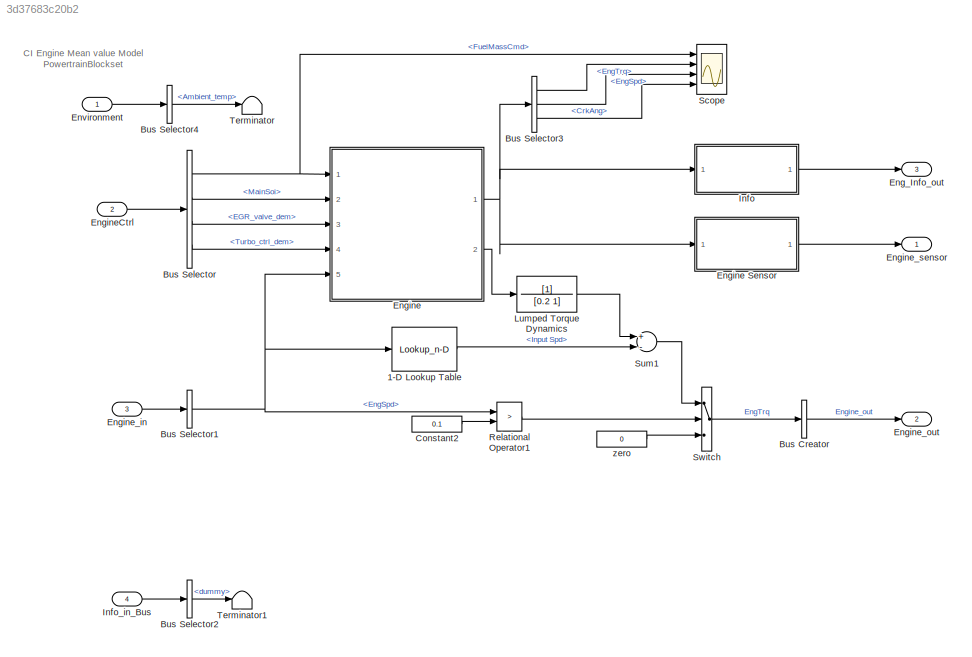
MODEL slx_3d37683c20b2
KIND model
CONFIG AbsTol = auto
CONFIG EnableMultiTasking = on
CONFIG FixedStep = 0.001
CONFIG MaxStep = auto
CONFIG MinStep = auto
CONFIG PreLoadFcn = Engine_MapMdl_Ptbs_V1_BusInfo
CONFIG RelTol = auto
CONFIG SampleTimeConstraint = Unconstrained
CONFIG Solver = VariableStepAuto
CONFIG SolverName = VariableStepAuto
CONFIG StartTime = 0.0
CONFIG StopTime = 660
WORKSPACE source: MAT-file member
WORKSPACE DiffRatio = 3.421
BLOCK [Lookup_n-D] 1-D Lookup Table
  BreakpointsForDimension1 = [0 100 200 300 400]
  ExtrapMethod = Clip
  InternalRulePriority = Speed
  NumberOfTableDimensions = 1
  Ports = [1, 1]
  RndMeth = Simplest
  Table = [0 5 10 20 40]
BLOCK [BusCreator] Bus Creator
  AttributesFormatString = %<OutDataTypeStr>
  DisplayOption = bar
  InheritFromInputs = on
  Inputs = 1
  OutDataTypeStr = Bus: Engine_out_Bus
  Ports = [1, 1]
BLOCK [BusSelector] Bus Selector
  OutputAsBus = off
  OutputSignals = FuelMassCmd,MainSoi,EGR_valve_dem,Turbo_ctrl_dem
  Ports = [1, 4]
BLOCK [BusSelector] Bus Selector1
  OutputAsBus = off
  OutputSignals = EngSpd
  Ports = [1, 1]
BLOCK [BusSelector] Bus Selector2
  OutputAsBus = off
  OutputSignals = dummy
  Ports = [1, 1]
BLOCK [BusSelector] Bus Selector3
  OutputAsBus = off
  OutputSignals = EngTrq,EngSpd,CrkAng
  Ports = [1, 3]
BLOCK [BusSelector] Bus Selector4
  OutputAsBus = off
  OutputSignals = Ambient_temp
  Ports = [1, 1]
BLOCK [Constant] Constant2
  Value = 0.1
BLOCK [Outport] Eng_Info_out
  AttributesFormatString = %<OutDataTypeStr>
  IconDisplay = Port number
  OutDataTypeStr = Bus: Eng_Info_out_Bus
  Port = 3
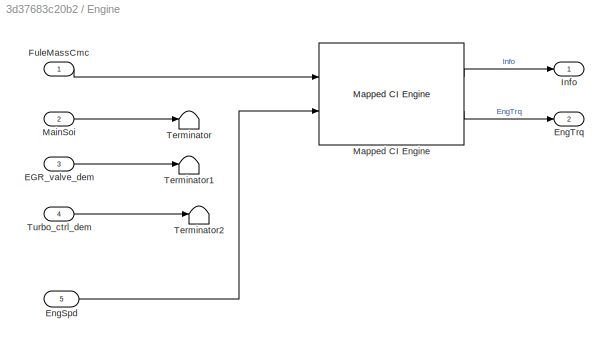
BLOCK [SubSystem] Engine
  Ports = [5, 2]
  RequestExecContextInheritance = off
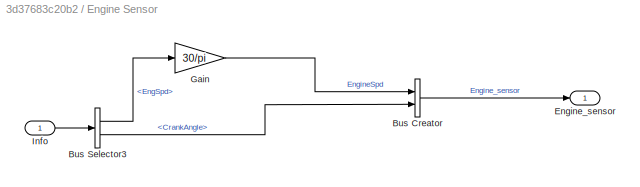
BLOCK [SubSystem] Engine Sensor
  Ports = [1, 1]
  RequestExecContextInheritance = off
BLOCK [BusCreator] Engine Sensor/Bus Creator
  AttributesFormatString = %<OutDataTypeStr>
  DisplayOption = bar
  InheritFromInputs = on
  Inputs = 2
  OutDataTypeStr = Bus: Engine_sensor_Bus
  Ports = [2, 1]
BLOCK [BusSelector] Engine Sensor/Bus Selector3
  OutputAsBus = off
  OutputSignals = EngSpd,CrankAngle
  Ports = [1, 2]
BLOCK [Outport] Engine Sensor/Engine_sensor
  IconDisplay = Port number
BLOCK [Gain] Engine Sensor/Gain
  Gain = 30/pi
  OutDataTypeStr = Inherit: Inherit via internal rule
  ParamDataTypeStr = Inherit: Inherit via internal rule
  SaturateOnIntegerOverflow = off
BLOCK [Inport] Engine Sensor/Info
  IconDisplay = Port number
BLOCK [Inport] Engine/EGR_valve_dem
  IconDisplay = Port number
  Port = 3
BLOCK [Inport] Engine/EngSpd
  IconDisplay = Port number
  Port = 5
BLOCK [Outport] Engine/EngTrq
  IconDisplay = Port number
  Port = 2
BLOCK [Inport] Engine/FuleMassCmc
  IconDisplay = Port number
BLOCK [Outport] Engine/Info
  IconDisplay = Port number
BLOCK [Inport] Engine/MainSoi
  IconDisplay = Port number
  Port = 2
BLOCK [Reference] Engine/Mapped CI Engine  REF=autolibsharedmappedengines/Mapped CI Engine
  Ports = [2, 2]
  SourceBlock = autolibsharedmappedengines/Mapped CI Engine
  SourceProductBaseCode = PW
  SourceProductName = Powertrain Blockset
  SourceType = Mapped CI Engine
BLOCK [Terminator] Engine/Terminator
BLOCK [Terminator] Engine/Terminator1
BLOCK [Terminator] Engine/Terminator2
BLOCK [Inport] Engine/Turbo_ctrl_dem
  IconDisplay = Port number
  Port = 4
BLOCK [Inport] EngineCtrl
  AttributesFormatString = %<OutDataTypeStr>
  IconDisplay = Port number
  OutDataTypeStr = Bus: EngineCtrl_Bus
  Port = 2
BLOCK [Inport] Engine_in
  AttributesFormatString = %<OutDataTypeStr>
  IconDisplay = Port number
  OutDataTypeStr = Bus: Engine_in_Bus
  Port = 3
BLOCK [Outport] Engine_out
  AttributesFormatString = %<OutDataTypeStr>
  IconDisplay = Port number
  OutDataTypeStr = Bus: Engine_out_Bus
  Port = 2
BLOCK [Outport] Engine_sensor
  AttributesFormatString = %<OutDataTypeStr>
  IconDisplay = Port number
  OutDataTypeStr = Bus: Engine_sensor_Bus
BLOCK [Inport] Environment
  AttributesFormatString = %<OutDataTypeStr>
  IconDisplay = Port number
  OutDataTypeStr = Bus: Environment_Bus
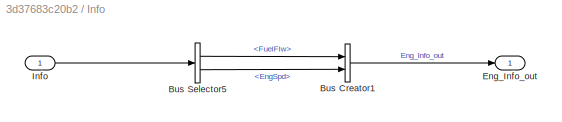
BLOCK [SubSystem] Info
  Ports = [1, 1]
  RequestExecContextInheritance = off
BLOCK [BusCreator] Info/Bus Creator1
  AttributesFormatString = %<OutDataTypeStr>
  DisplayOption = bar
  InheritFromInputs = on
  Inputs = 2
  OutDataTypeStr = Bus: Eng_Info_out_Bus
  Ports = [2, 1]
BLOCK [BusSelector] Info/Bus Selector5
  OutputAsBus = off
  OutputSignals = FuelFlw,EngSpd
  Ports = [1, 2]
BLOCK [Outport] Info/Eng_Info_out
  IconDisplay = Port number
BLOCK [Inport] Info/Info
  IconDisplay = Port number
BLOCK [Inport] Info_in_Bus
  AttributesFormatString = %<OutDataTypeStr>
  IconDisplay = Port number
  OutDataTypeStr = Bus: Eng_Info_in_Bus
  Port = 4
BLOCK [TransferFcn] Lumped Torque Dynamics
  Denominator = [0.2 1]
BLOCK [RelationalOperator] Relational Operator1
  InputSameDT = off
  Operator = >
  OutDataTypeStr = boolean
  Ports = [2, 1]
BLOCK [Scope] Scope
  Floating = off
  NumInputPorts = 4
  Ports = [4]
  ScopeSpecificationString = Simulink.scopes.TimeScopeBlockCfg('CurrentConfiguration', extmgr.ConfigurationSet(extmgr.Configuration('Core','General UI',true),extmgr.Configuration('Core','Source UI',true),extmgr.Configuration('Sources','WiredSimulink',true),extmgr.Configuration('Visuals','Time Domain',true,'SerializedDisplays',{struct('MinYLimReal','-2.70691','MaxYLimReal','24.3622','YLabelReal','','MinYLimMag','0.00000','MaxY...<+3344ch>
BLOCK [Sum] Sum1
  InputSameDT = off
  Inputs = +-
  OutDataTypeStr = Inherit: Inherit via internal rule
  Ports = [2, 1]
  SaturateOnIntegerOverflow = off
BLOCK [Switch] Switch
  AttributesFormatString = <%<Criteria>>
  Criteria = u2 ~= 0
  InputSameDT = off
  Threshold = 0.5
BLOCK [Terminator] Terminator
BLOCK [Terminator] Terminator1
BLOCK [Constant] zero
  Value = 0
ANNOTATION (root): CI Engine Mean value Model PowertrainBlockset
LINE 1-D Lookup Table:1 -> Sum1:2
LINE Bus Creator:1 -> Engine_out:1
NET Bus Selector1:1 -> 1-D Lookup Table:1, Engine:5, Relational Operator1:1
LINE Bus Selector2:1 -> Terminator1:1
LINE Bus Selector3:1 -> Scope:2
LINE Bus Selector3:2 -> Scope:3
LINE Bus Selector3:3 -> Scope:4
LINE Bus Selector4:1 -> Terminator:1
NET Bus Selector:1 -> Engine:1, Scope:1
LINE Bus Selector:2 -> Engine:2
LINE Bus Selector:3 -> Engine:3
LINE Bus Selector:4 -> Engine:4
LINE Constant2:1 -> Relational Operator1:2
LINE Engine Sensor/Bus Creator:1 -> Engine Sensor/Engine_sensor:1
LINE Engine Sensor/Bus Selector3:1 -> Engine Sensor/Gain:1
LINE Engine Sensor/Bus Selector3:2 -> Engine Sensor/Bus Creator:2
LINE Engine Sensor/Gain:1 -> Engine Sensor/Bus Creator:1
LINE Engine Sensor/Info:1 -> Engine Sensor/Bus Selector3:1
LINE Engine Sensor:1 -> Engine_sensor:1
LINE Engine/EGR_valve_dem:1 -> Engine/Terminator1:1
LINE Engine/EngSpd:1 -> Engine/Mapped CI Engine:2
LINE Engine/FuleMassCmc:1 -> Engine/Mapped CI Engine:1
LINE Engine/MainSoi:1 -> Engine/Terminator:1
LINE Engine/Mapped CI Engine:1 -> Engine/Info:1
LINE Engine/Mapped CI Engine:2 -> Engine/EngTrq:1
LINE Engine/Turbo_ctrl_dem:1 -> Engine/Terminator2:1
NET Engine:1 -> Bus Selector3:1, Engine Sensor:1, Info:1
LINE Engine:2 -> Lumped Torque Dynamics:1
LINE EngineCtrl:1 -> Bus Selector:1
LINE Engine_in:1 -> Bus Selector1:1
LINE Environment:1 -> Bus Selector4:1
LINE Info/Bus Creator1:1 -> Info/Eng_Info_out:1
LINE Info/Bus Selector5:1 -> Info/Bus Creator1:1
LINE Info/Bus Selector5:2 -> Info/Bus Creator1:2
LINE Info/Info:1 -> Info/Bus Selector5:1
LINE Info:1 -> Eng_Info_out:1
LINE Info_in_Bus:1 -> Bus Selector2:1
LINE Lumped Torque Dynamics:1 -> Sum1:1
LINE Relational Operator1:1 -> Switch:2
LINE Sum1:1 -> Switch:1
LINE Switch:1 -> Bus Creator:1
LINE zero:1 -> Switch:3
note: NET lines group one-source signal fan-out (src -> all destinations, sorted); 1:1 wires keep LINE
